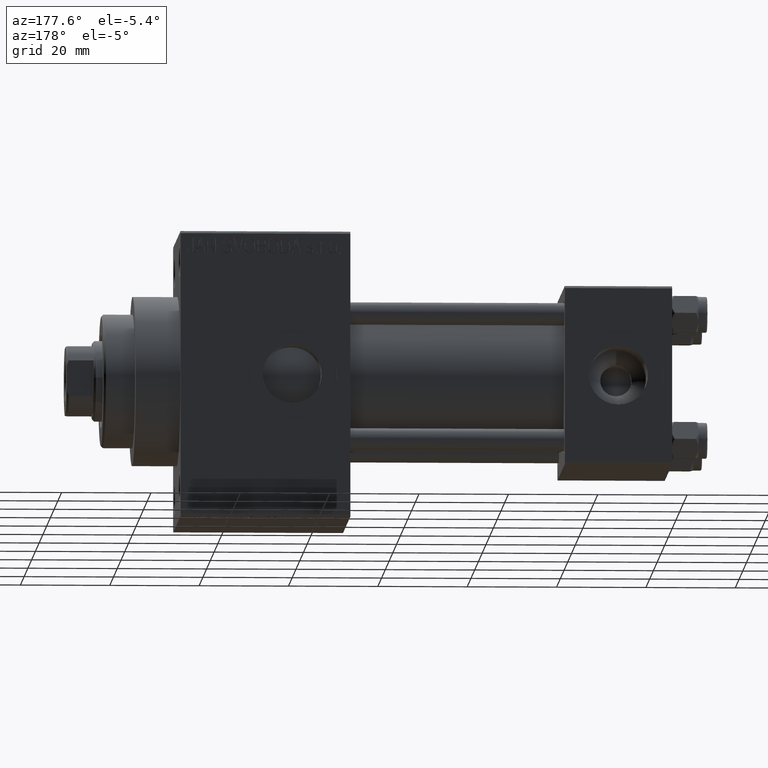
[diagram: clean part render]
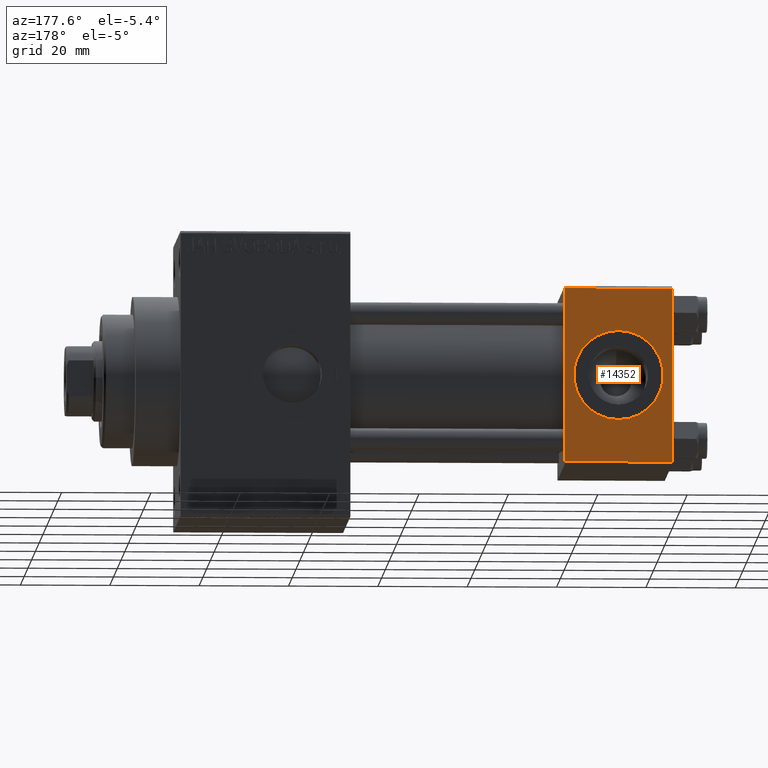
[diagram: same view with one face highlighted and labeled with its STEP entity id]
A machine part, auxiliary view. The second image highlights one B-rep face of the part: STEP entity #14352.
In plain terms, the highlighted planar face has unit normal (0, 1, 0).
Its self-contained STEP definition (entity closure, byte-faithful):
#311 = CARTESIAN_POINT ( 'NONE',  ( 0.000000000000000000, 20.00000000000000000, 19.49999999999999289 ) ) ;
#451 = ORIENTED_EDGE ( 'NONE', *, *, #38333, .T. ) ;
#1176 = EDGE_LOOP ( 'NONE', ( #13742, #451, #5945, #8381 ) ) ;
#1403 = LINE ( 'NONE', #27724, #10714 ) ;
#3220 = EDGE_LOOP ( 'NONE', ( #34686, #31384 ) ) ;
#3631 = VERTEX_POINT ( 'NONE', #25351 ) ;
#4779 = PLANE ( 'NONE',  #21758 ) ;
#4832 = CIRCLE ( 'NONE', #19749, 10.00000000000000000 ) ;
#5805 = CARTESIAN_POINT ( 'NONE',  ( 12.00000000000000000, 20.00000000000000000, 10.00000000000000000 ) ) ;
#5945 = ORIENTED_EDGE ( 'NONE', *, *, #48566, .F. ) ;
#7080 = EDGE_CURVE ( 'NONE', #25732, #27009, #12975, .T. ) ;
#7200 = VERTEX_POINT ( 'NONE', #13949 ) ;
#8381 = ORIENTED_EDGE ( 'NONE', *, *, #7080, .T. ) ;
#8682 = LINE ( 'NONE', #34546, #10545 ) ;
#8925 = DIRECTION ( 'NONE',  ( -1.000000000000000000, 0.000000000000000000, 0.000000000000000000 ) ) ;
#9125 = EDGE_CURVE ( 'NONE', #27009, #28601, #1403, .T. ) ;
#10545 = VECTOR ( 'NONE', #8925, 1000.000000000000000 ) ;
#10714 = VECTOR ( 'NONE', #12696, 1000.000000000000000 ) ;
#11447 = CARTESIAN_POINT ( 'NONE',  ( 24.00000000000000000, 20.00000000000000000, 20.00000000000000000 ) ) ;
#12188 = DIRECTION ( 'NONE',  ( 0.000000000000000000, 1.000000000000000000, 0.000000000000000000 ) ) ;
#12533 = AXIS2_PLACEMENT_3D ( 'NONE', #16829, #17307, #28407 ) ;
#12696 = DIRECTION ( 'NONE',  ( 0.000000000000000000, 0.000000000000000000, -1.000000000000000000 ) ) ;
#12717 = DIRECTION ( 'NONE',  ( 0.000000000000000000, 0.000000000000000000, -1.000000000000000000 ) ) ;
#12975 = LINE ( 'NONE', #43531, #37352 ) ;
#13742 = ORIENTED_EDGE ( 'NONE', *, *, #9125, .T. ) ;
#13949 = CARTESIAN_POINT ( 'NONE',  ( 0.000000000000000000, 20.00000000000000000, -19.50000000000002132 ) ) ;
#14352 = ADVANCED_FACE ( 'NONE', ( #22999, #45202 ), #4779, .T. ) ;
#15887 = CARTESIAN_POINT ( 'NONE',  ( 12.00000000000000000, 20.00000000000000000, 0.000000000000000000 ) ) ;
#16829 = CARTESIAN_POINT ( 'NONE',  ( 12.00000000000000000, 20.00000000000000000, 0.000000000000000000 ) ) ;
#17307 = DIRECTION ( 'NONE',  ( 0.000000000000000000, 1.000000000000000000, 0.000000000000000000 ) ) ;
#18034 = CIRCLE ( 'NONE', #12533, 10.00000000000000000 ) ;
#19749 = AXIS2_PLACEMENT_3D ( 'NONE', #15887, #12188, #38768 ) ;
#20340 = VERTEX_POINT ( 'NONE', #5805 ) ;
#20633 = EDGE_CURVE ( 'NONE', #3631, #20340, #18034, .T. ) ;
#21758 = AXIS2_PLACEMENT_3D ( 'NONE', #11447, #45447, #27185 ) ;
#22999 = FACE_BOUND ( 'NONE', #3220, .T. ) ;
#25129 = CARTESIAN_POINT ( 'NONE',  ( 24.00000000000000000, 20.00000000000000000, -19.50000000000002132 ) ) ;
#25351 = CARTESIAN_POINT ( 'NONE',  ( 12.00000000000000178, 20.00000000000000000, -10.00000000000000000 ) ) ;
#25732 = VERTEX_POINT ( 'NONE', #311 ) ;
#27009 = VERTEX_POINT ( 'NONE', #30967 ) ;
#27185 = DIRECTION ( 'NONE',  ( 0.000000000000000000, -0.000000000000000000, 1.000000000000000000 ) ) ;
#27724 = CARTESIAN_POINT ( 'NONE',  ( 24.00000000000000000, 20.00000000000000000, 20.00000000000000000 ) ) ;
#28198 = EDGE_CURVE ( 'NONE', #20340, #3631, #4832, .T. ) ;
#28407 = DIRECTION ( 'NONE',  ( 0.000000000000000000, 0.000000000000000000, 1.000000000000000000 ) ) ;
#28506 = DIRECTION ( 'NONE',  ( 1.000000000000000000, 0.000000000000000000, 0.000000000000000000 ) ) ;
#28601 = VERTEX_POINT ( 'NONE', #25129 ) ;
#30967 = CARTESIAN_POINT ( 'NONE',  ( 24.00000000000000000, 20.00000000000000000, 19.49999999999999289 ) ) ;
#31202 = LINE ( 'NONE', #46245, #31212 ) ;
#31212 = VECTOR ( 'NONE', #12717, 1000.000000000000000 ) ;
#31384 = ORIENTED_EDGE ( 'NONE', *, *, #20633, .F. ) ;
#34546 = CARTESIAN_POINT ( 'NONE',  ( 24.00000000000000000, 20.00000000000000000, -19.50000000000002132 ) ) ;
#34686 = ORIENTED_EDGE ( 'NONE', *, *, #28198, .F. ) ;
#37352 = VECTOR ( 'NONE', #28506, 1000.000000000000000 ) ;
#38333 = EDGE_CURVE ( 'NONE', #28601, #7200, #8682, .T. ) ;
#38768 = DIRECTION ( 'NONE',  ( 0.000000000000000000, 0.000000000000000000, 1.000000000000000000 ) ) ;
#43531 = CARTESIAN_POINT ( 'NONE',  ( 24.00000000000000000, 20.00000000000000000, 19.49999999999999289 ) ) ;
#45202 = FACE_OUTER_BOUND ( 'NONE', #1176, .T. ) ;
#45447 = DIRECTION ( 'NONE',  ( -0.000000000000000000, 1.000000000000000000, 0.000000000000000000 ) ) ;
#46245 = CARTESIAN_POINT ( 'NONE',  ( 0.000000000000000000, 20.00000000000000000, 20.00000000000000000 ) ) ;
#48566 = EDGE_CURVE ( 'NONE', #25732, #7200, #31202, .T. ) ;